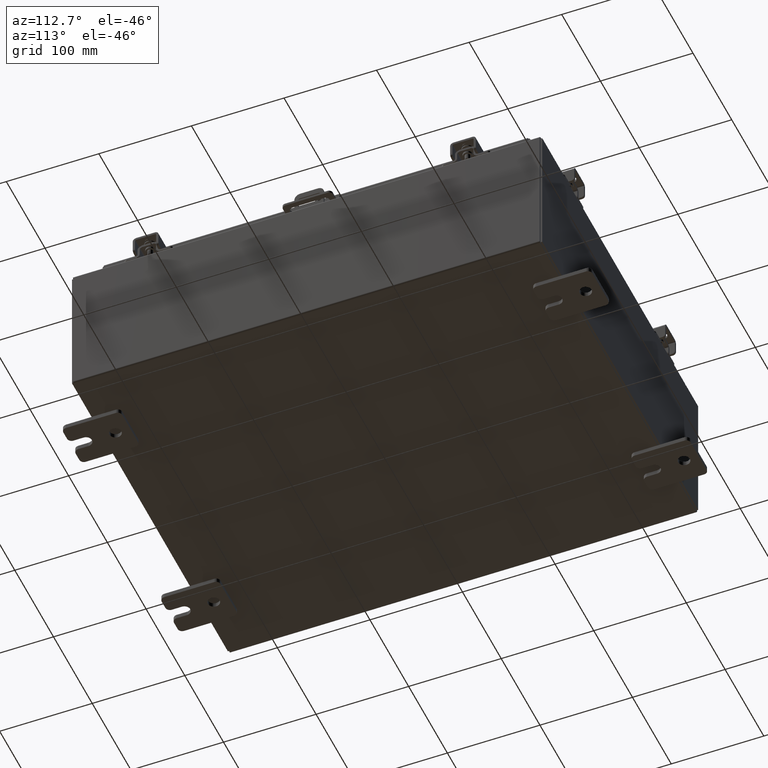
[diagram: clean part render]
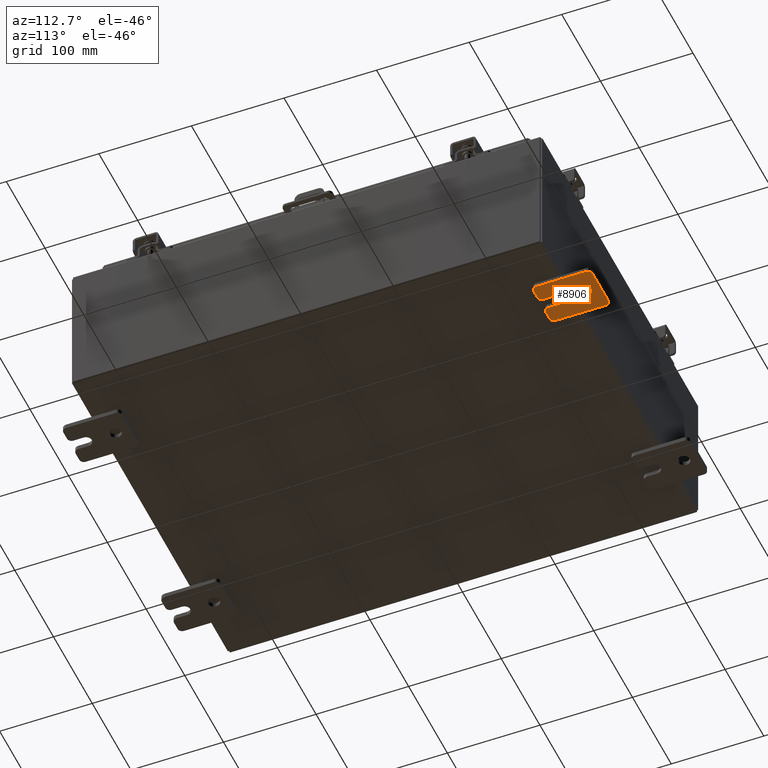
[diagram: same view with one face highlighted and labeled with its STEP entity id]
A machine part, auxiliary view. The second image highlights one B-rep face of the part: STEP entity #8906.
In plain terms, the highlighted planar face has unit normal (0, 0, 1).
Its self-contained STEP definition (entity closure, byte-faithful):
#54 = CARTESIAN_POINT ( 'NONE',  ( -0.1880000000000010000, 0.6249999999999992200, 0.2499999999999999200 ) ) ;
#204 = CIRCLE ( 'NONE', #23726, 0.1900000000000011100 ) ;
#230 = VECTOR ( 'NONE', #18340, 39.37007874015748100 ) ;
#616 = DIRECTION ( 'NONE',  ( 0.0000000000000000000, 0.0000000000000000000, -1.000000000000000000 ) ) ;
#737 = CARTESIAN_POINT ( 'NONE',  ( -0.1879999999999997800, -1.060000000000002100, 0.4400000000000016700 ) ) ;
#797 = VECTOR ( 'NONE', #19032, 39.37007874015748100 ) ;
#944 = EDGE_CURVE ( 'NONE', #26033, #24351, #14754, .T. ) ;
#1294 = AXIS2_PLACEMENT_3D ( 'NONE', #18036, #4385, #20315 ) ;
#1665 = AXIS2_PLACEMENT_3D ( 'NONE', #6266, #22209, #8502 ) ;
#1974 = VECTOR ( 'NONE', #21155, 39.37007874015748100 ) ;
#2070 = VECTOR ( 'NONE', #2788, 39.37007874015748100 ) ;
#2148 = DIRECTION ( 'NONE',  ( -1.000000000000000000, -0.0000000000000000000, 0.0000000000000000000 ) ) ;
#2217 = EDGE_CURVE ( 'NONE', #8967, #3645, #9684, .T. ) ;
#2336 = EDGE_CURVE ( 'NONE', #13142, #19331, #4744, .T. ) ;
#2679 = VERTEX_POINT ( 'NONE', #19880 ) ;
#2788 = DIRECTION ( 'NONE',  ( 6.556435184794182400E-016, 1.000000000000000000, 0.0000000000000000000 ) ) ;
#3032 = DIRECTION ( 'NONE',  ( 0.0000000000000000000, 0.0000000000000000000, -1.000000000000000000 ) ) ;
#3083 = CARTESIAN_POINT ( 'NONE',  ( -0.1879999999999997800, 1.249999999999994200, -1.000000000000010400 ) ) ;
#3265 = EDGE_LOOP ( 'NONE', ( #11277, #19608, #4347, #7865, #18892, #25292, #16427, #22432, #12416, #25992, #26484, #24438, #7997, #24530 ) ) ;
#3285 = VECTOR ( 'NONE', #18788, 39.37007874015748100 ) ;
#3645 = VERTEX_POINT ( 'NONE', #54 ) ;
#3690 = CARTESIAN_POINT ( 'NONE',  ( -0.1879999999999997800, -1.060000000000001200, 0.9999999999999988900 ) ) ;
#4347 = ORIENTED_EDGE ( 'NONE', *, *, #15576, .F. ) ;
#4385 = DIRECTION ( 'NONE',  ( 1.000000000000000000, -0.0000000000000000000, -5.163192708025532000E-017 ) ) ;
#4593 = CARTESIAN_POINT ( 'NONE',  ( -0.1879999999999997800, 0.0000000000000000000, 0.0000000000000000000 ) ) ;
#4744 = CIRCLE ( 'NONE', #13811, 0.1900000000000011100 ) ;
#4827 = EDGE_CURVE ( 'NONE', #7062, #10972, #25137, .T. ) ;
#5157 = CARTESIAN_POINT ( 'NONE',  ( -0.1879999999999997800, -1.250000000000002200, 0.9999999999999992200 ) ) ;
#5322 = CARTESIAN_POINT ( 'NONE',  ( -0.1880000000000001900, -0.6249999999999992200, 6.829619984160658000E-017 ) ) ;
#5440 = EDGE_CURVE ( 'NONE', #21783, #11503, #28254, .T. ) ;
#5931 = CARTESIAN_POINT ( 'NONE',  ( -0.1880000000000004700, -1.060000000000003400, -0.2499999999999994400 ) ) ;
#5965 = EDGE_CURVE ( 'NONE', #23629, #26821, #27526, .T. ) ;
#6259 = LINE ( 'NONE', #27385, #230 ) ;
#6266 = CARTESIAN_POINT ( 'NONE',  ( -0.1879999999999997800, -1.060000000000004100, -0.8100000000000050500 ) ) ;
#6843 = LINE ( 'NONE', #3083, #797 ) ;
#7062 = VERTEX_POINT ( 'NONE', #28294 ) ;
#7261 = EDGE_CURVE ( 'NONE', #10972, #11503, #6259, .T. ) ;
#7563 = CARTESIAN_POINT ( 'NONE',  ( -0.1879999999999997800, 1.249999999999997300, 0.8099999999999935000 ) ) ;
#7609 = DIRECTION ( 'NONE',  ( -6.829619984160660000E-016, -1.000000000000000000, 0.0000000000000000000 ) ) ;
#7865 = ORIENTED_EDGE ( 'NONE', *, *, #2336, .T. ) ;
#7866 = EDGE_CURVE ( 'NONE', #23629, #12787, #204, .T. ) ;
#7997 = ORIENTED_EDGE ( 'NONE', *, *, #19323, .F. ) ;
#8212 = CARTESIAN_POINT ( 'NONE',  ( -0.1879999999999997800, 1.059999999999993600, -0.8100000000000089400 ) ) ;
#8502 = DIRECTION ( 'NONE',  ( 0.0000000000000000000, 0.0000000000000000000, -1.000000000000000000 ) ) ;
#8906 = ADVANCED_FACE ( 'NONE', ( #18643, #24703 ), #9235, .F. ) ;
#8967 = VERTEX_POINT ( 'NONE', #9348 ) ;
#9144 = CARTESIAN_POINT ( 'NONE',  ( -0.1879999999999997800, -1.250000000000002400, 0.8099999999999980500 ) ) ;
#9235 = PLANE ( 'NONE',  #29047 ) ;
#9348 = CARTESIAN_POINT ( 'NONE',  ( -0.1880000000000010000, 0.6249999999999992200, -0.2499999999999999200 ) ) ;
#9375 = CARTESIAN_POINT ( 'NONE',  ( -0.1879999999999997800, 1.249999999999997600, 0.9999999999999951200 ) ) ;
#9684 = CIRCLE ( 'NONE', #28163, 0.2499999999999999200 ) ;
#10002 = CIRCLE ( 'NONE', #1665, 0.1900000000000011100 ) ;
#10379 = EDGE_CURVE ( 'NONE', #2679, #19331, #6843, .T. ) ;
#10490 = DIRECTION ( 'NONE',  ( 0.0000000000000000000, 0.0000000000000000000, -1.000000000000000000 ) ) ;
#10606 = CARTESIAN_POINT ( 'NONE',  ( -0.1880000000000004700, -1.060000000000002100, 0.2500000000000005000 ) ) ;
#10972 = VERTEX_POINT ( 'NONE', #16586 ) ;
#11223 = CARTESIAN_POINT ( 'NONE',  ( -0.1879999999999997800, -1.060000000000003400, -0.4400000000000005000 ) ) ;
#11277 = ORIENTED_EDGE ( 'NONE', *, *, #5965, .F. ) ;
#11503 = VERTEX_POINT ( 'NONE', #5931 ) ;
#11516 = CARTESIAN_POINT ( 'NONE',  ( -0.1880000000000010000, 0.6249999999999992200, -7.703811342100550500E-020 ) ) ;
#11532 = DIRECTION ( 'NONE',  ( -0.0000000000000000000, 0.0000000000000000000, -1.000000000000000000 ) ) ;
#11845 = EDGE_CURVE ( 'NONE', #21783, #17796, #13574, .T. ) ;
#11888 = ORIENTED_EDGE ( 'NONE', *, *, #2217, .T. ) ;
#12416 = ORIENTED_EDGE ( 'NONE', *, *, #11845, .F. ) ;
#12787 = VERTEX_POINT ( 'NONE', #3690 ) ;
#13142 = VERTEX_POINT ( 'NONE', #19205 ) ;
#13391 = CIRCLE ( 'NONE', #13440, 0.1900000000000011400 ) ;
#13440 = AXIS2_PLACEMENT_3D ( 'NONE', #737, #16648, #3032 ) ;
#13501 = DIRECTION ( 'NONE',  ( 0.0000000000000000000, 0.0000000000000000000, -1.000000000000000000 ) ) ;
#13574 = LINE ( 'NONE', #22983, #20406 ) ;
#13793 = DIRECTION ( 'NONE',  ( 0.0000000000000000000, 0.0000000000000000000, -1.000000000000000000 ) ) ;
#13811 = AXIS2_PLACEMENT_3D ( 'NONE', #27889, #14182, #616 ) ;
#14182 = DIRECTION ( 'NONE',  ( -1.000000000000000000, -0.0000000000000000000, 0.0000000000000000000 ) ) ;
#14754 = LINE ( 'NONE', #28002, #1974 ) ;
#14774 = CARTESIAN_POINT ( 'NONE',  ( -0.1879999999999997800, -1.060000000000004500, -1.000000000000006400 ) ) ;
#14835 = EDGE_CURVE ( 'NONE', #18934, #26821, #13391, .T. ) ;
#15576 = EDGE_CURVE ( 'NONE', #13142, #12787, #25914, .T. ) ;
#15774 = CARTESIAN_POINT ( 'NONE',  ( -0.1879999999999997800, -1.060000000000001600, 0.8099999999999978300 ) ) ;
#16110 = EDGE_LOOP ( 'NONE', ( #11888, #25176 ) ) ;
#16124 = CIRCLE ( 'NONE', #1294, 0.2499999999999999200 ) ;
#16427 = ORIENTED_EDGE ( 'NONE', *, *, #944, .F. ) ;
#16586 = CARTESIAN_POINT ( 'NONE',  ( -0.1880000000000001900, -0.6249999999999992200, -0.2499999999999998600 ) ) ;
#16648 = DIRECTION ( 'NONE',  ( -1.000000000000000000, -0.0000000000000000000, 0.0000000000000000000 ) ) ;
#16660 = CARTESIAN_POINT ( 'NONE',  ( -0.1879999999999997800, -1.250000000000005300, -0.8100000000000047200 ) ) ;
#17796 = VERTEX_POINT ( 'NONE', #16660 ) ;
#18036 = CARTESIAN_POINT ( 'NONE',  ( -0.1880000000000010000, 0.6249999999999992200, -7.703811342100550500E-020 ) ) ;
#18078 = DIRECTION ( 'NONE',  ( 0.0000000000000000000, 7.189073667537492800E-016, -1.000000000000000000 ) ) ;
#18340 = DIRECTION ( 'NONE',  ( -6.556435184794182400E-016, -1.000000000000000000, -1.639108796198545600E-016 ) ) ;
#18643 = FACE_BOUND ( 'NONE', #16110, .T. ) ;
#18788 = DIRECTION ( 'NONE',  ( 0.0000000000000000000, -1.639108796198553600E-015, -1.000000000000000000 ) ) ;
#18892 = ORIENTED_EDGE ( 'NONE', *, *, #10379, .F. ) ;
#18934 = VERTEX_POINT ( 'NONE', #10606 ) ;
#19032 = DIRECTION ( 'NONE',  ( 0.0000000000000000000, 1.639108796198553600E-015, 1.000000000000000000 ) ) ;
#19205 = CARTESIAN_POINT ( 'NONE',  ( -0.1879999999999997800, 1.059999999999996500, 0.9999999999999953400 ) ) ;
#19323 = EDGE_CURVE ( 'NONE', #18934, #7062, #20243, .T. ) ;
#19331 = VERTEX_POINT ( 'NONE', #7563 ) ;
#19522 = EDGE_CURVE ( 'NONE', #2679, #24351, #21325, .T. ) ;
#19608 = ORIENTED_EDGE ( 'NONE', *, *, #7866, .T. ) ;
#19880 = CARTESIAN_POINT ( 'NONE',  ( -0.1879999999999997800, 1.249999999999994700, -0.8100000000000092700 ) ) ;
#20243 = LINE ( 'NONE', #27988, #2070 ) ;
#20315 = DIRECTION ( 'NONE',  ( 0.0000000000000000000, 0.0000000000000000000, -1.000000000000000000 ) ) ;
#20406 = VECTOR ( 'NONE', #25180, 39.37007874015748100 ) ;
#20569 = VECTOR ( 'NONE', #25371, 39.37007874015748100 ) ;
#20626 = CARTESIAN_POINT ( 'NONE',  ( -0.1879999999999997800, 1.059999999999993400, -1.000000000000010000 ) ) ;
#21155 = DIRECTION ( 'NONE',  ( 0.0000000000000000000, 1.000000000000000000, -1.639108796198558100E-015 ) ) ;
#21282 = DIRECTION ( 'NONE',  ( -1.000000000000000000, 6.523827964459549700E-016, 5.163192708025532000E-017 ) ) ;
#21325 = CIRCLE ( 'NONE', #25624, 0.1900000000000011100 ) ;
#21783 = VERTEX_POINT ( 'NONE', #23867 ) ;
#22209 = DIRECTION ( 'NONE',  ( -1.000000000000000000, -0.0000000000000000000, 0.0000000000000000000 ) ) ;
#22432 = ORIENTED_EDGE ( 'NONE', *, *, #24072, .T. ) ;
#22983 = CARTESIAN_POINT ( 'NONE',  ( -0.1879999999999997800, -1.250000000000002200, 0.9999999999999992200 ) ) ;
#23551 = EDGE_CURVE ( 'NONE', #3645, #8967, #16124, .T. ) ;
#23629 = VERTEX_POINT ( 'NONE', #9144 ) ;
#23726 = AXIS2_PLACEMENT_3D ( 'NONE', #15774, #2148, #18078 ) ;
#23867 = CARTESIAN_POINT ( 'NONE',  ( -0.1879999999999997800, -1.250000000000004700, -0.4400000000000002200 ) ) ;
#24072 = EDGE_CURVE ( 'NONE', #26033, #17796, #10002, .T. ) ;
#24201 = DIRECTION ( 'NONE',  ( -1.000000000000000000, -0.0000000000000000000, 0.0000000000000000000 ) ) ;
#24351 = VERTEX_POINT ( 'NONE', #20626 ) ;
#24438 = ORIENTED_EDGE ( 'NONE', *, *, #4827, .F. ) ;
#24530 = ORIENTED_EDGE ( 'NONE', *, *, #14835, .T. ) ;
#24703 = FACE_OUTER_BOUND ( 'NONE', #3265, .T. ) ;
#25137 = CIRCLE ( 'NONE', #28395, 0.2499999999999999200 ) ;
#25176 = ORIENTED_EDGE ( 'NONE', *, *, #23551, .T. ) ;
#25180 = DIRECTION ( 'NONE',  ( 0.0000000000000000000, -1.639108796198553600E-015, -1.000000000000000000 ) ) ;
#25246 = DIRECTION ( 'NONE',  ( 1.000000000000000000, 0.0000000000000000000, -0.0000000000000000000 ) ) ;
#25292 = ORIENTED_EDGE ( 'NONE', *, *, #19522, .T. ) ;
#25371 = DIRECTION ( 'NONE',  ( 0.0000000000000000000, -1.000000000000000000, 1.639108796198558100E-015 ) ) ;
#25624 = AXIS2_PLACEMENT_3D ( 'NONE', #8212, #24201, #10490 ) ;
#25755 = AXIS2_PLACEMENT_3D ( 'NONE', #11223, #27234, #13501 ) ;
#25914 = LINE ( 'NONE', #9375, #20569 ) ;
#25992 = ORIENTED_EDGE ( 'NONE', *, *, #5440, .T. ) ;
#26033 = VERTEX_POINT ( 'NONE', #14774 ) ;
#26484 = ORIENTED_EDGE ( 'NONE', *, *, #7261, .F. ) ;
#26814 = CARTESIAN_POINT ( 'NONE',  ( -0.1879999999999997800, -1.250000000000003100, 0.4400000000000020000 ) ) ;
#26821 = VERTEX_POINT ( 'NONE', #26814 ) ;
#27234 = DIRECTION ( 'NONE',  ( -1.000000000000000000, -0.0000000000000000000, 0.0000000000000000000 ) ) ;
#27385 = CARTESIAN_POINT ( 'NONE',  ( -0.1880000000000001900, -0.6249999999999992200, -0.2499999999999993900 ) ) ;
#27498 = DIRECTION ( 'NONE',  ( 1.000000000000000000, -0.0000000000000000000, -5.163192708025532000E-017 ) ) ;
#27526 = LINE ( 'NONE', #5157, #3285 ) ;
#27889 = CARTESIAN_POINT ( 'NONE',  ( -0.1879999999999997800, 1.059999999999996300, 0.8099999999999938400 ) ) ;
#27988 = CARTESIAN_POINT ( 'NONE',  ( -0.1880000000000005800, -1.250000000000003800, 0.2500000000000005000 ) ) ;
#28002 = CARTESIAN_POINT ( 'NONE',  ( -0.1879999999999997800, -1.250000000000005600, -1.000000000000006200 ) ) ;
#28163 = AXIS2_PLACEMENT_3D ( 'NONE', #11516, #27498, #13793 ) ;
#28254 = CIRCLE ( 'NONE', #25755, 0.1900000000000011100 ) ;
#28294 = CARTESIAN_POINT ( 'NONE',  ( -0.1880000000000001900, -0.6249999999999992200, 0.2500000000000005000 ) ) ;
#28395 = AXIS2_PLACEMENT_3D ( 'NONE', #5322, #21282, #7609 ) ;
#29047 = AXIS2_PLACEMENT_3D ( 'NONE', #4593, #25246, #11532 ) ;